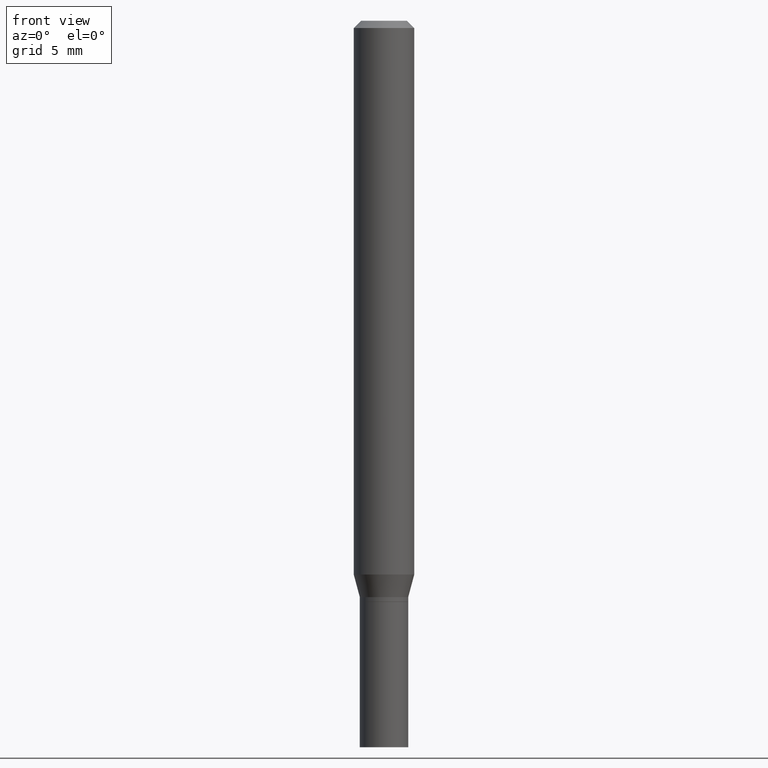
[diagram: clean part render]
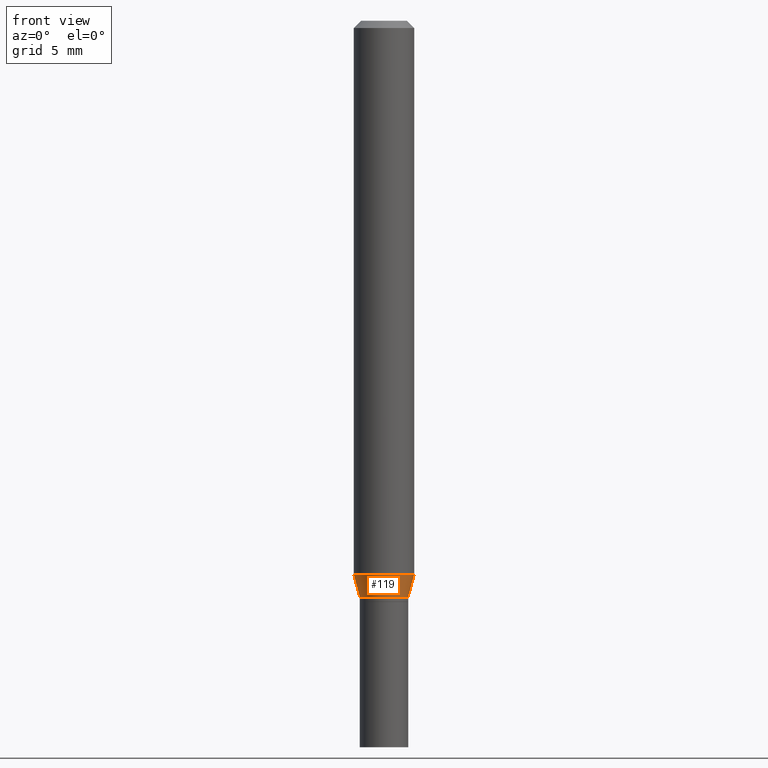
[diagram: same view with one face highlighted and labeled with its STEP entity id]
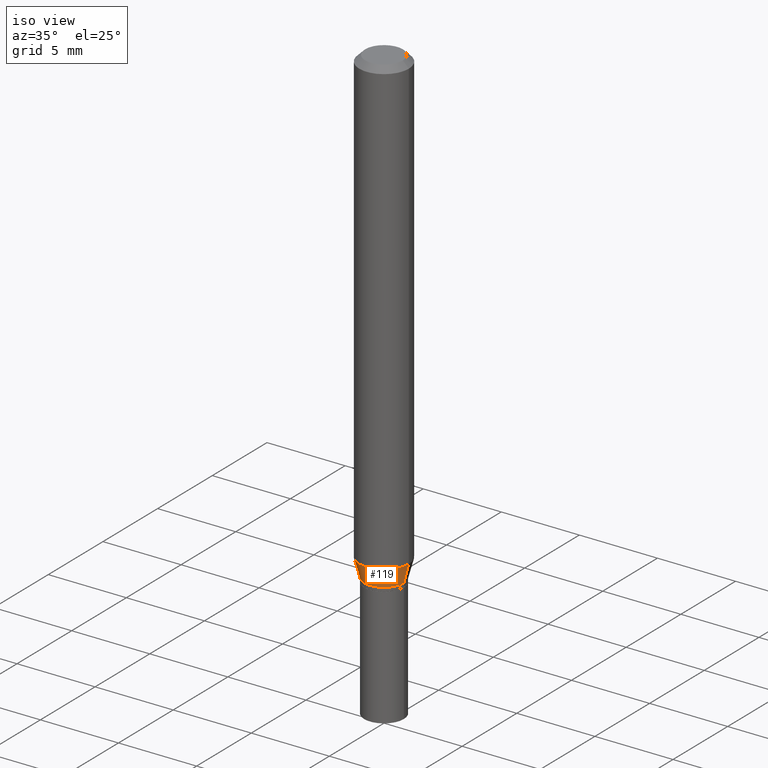
[diagram: same view with one face highlighted and labeled with its STEP entity id]
A machine part, front view. The second image highlights one B-rep face of the part: STEP entity #119.
A second angle (iso view) of the same face is appended — the face is thin or edge-on in the first view.
In plain terms, the highlighted conical surface has half-angle 15 deg.
Its self-contained STEP definition (entity closure, byte-faithful):
#9 = DIRECTION ( 'NONE',  ( -2.445468806185136597E-29, 3.491481338843145583E-15, 1.000000000000000000 ) ) ;
#10 = CIRCLE ( 'NONE', #130, 0.05000000000000006523 ) ;
#31 = DIRECTION ( 'NONE',  ( 1.000000000000000000, -6.982962677686265133E-15, 0.000000000000000000 ) ) ;
#32 = DIRECTION ( 'NONE',  ( 1.000000000000000000, -6.982962677686270655E-15, 0.000000000000000000 ) ) ;
#33 = EDGE_CURVE ( 'NONE', #134, #355, #357, .T. ) ;
#52 = AXIS2_PLACEMENT_3D ( 'NONE', #464, #344, #32 ) ;
#53 = VECTOR ( 'NONE', #143, 39.37007874015748143 ) ;
#74 = CARTESIAN_POINT ( 'NONE',  ( 2.910107879360313156E-29, -4.154862793223344154E-15, -1.190000000000000169 ) ) ;
#104 = DIRECTION ( 'NONE',  ( -2.445468806185136597E-29, 3.491481338843145583E-15, 1.000000000000000000 ) ) ;
#105 = ORIENTED_EDGE ( 'NONE', *, *, #337, .T. ) ;
#113 = DIRECTION ( 'NONE',  ( 0.2588190451025219607, 1.565188264969617432E-15, 0.9659258262890679791 ) ) ;
#118 = DIRECTION ( 'NONE',  ( 1.000000000000000000, -6.982962677686265133E-15, 0.000000000000000000 ) ) ;
#119 = ADVANCED_FACE ( 'NONE', ( #335 ), #166, .T. ) ;
#130 = AXIS2_PLACEMENT_3D ( 'NONE', #74, #104, #31 ) ;
#134 = VERTEX_POINT ( 'NONE', #235 ) ;
#143 = DIRECTION ( 'NONE',  ( -0.2588190451025219607, 5.211531920934553408E-15, 0.9659258262890679791 ) ) ;
#144 = CARTESIAN_POINT ( 'NONE',  ( 2.910107879360313156E-29, -4.154862793223344154E-15, -1.190000000000000169 ) ) ;
#155 = EDGE_CURVE ( 'NONE', #310, #291, #10, .T. ) ;
#166 = CONICAL_SURFACE ( 'NONE', #419, 0.05000000000000006523, 0.2617993877991506846 ) ;
#186 = LINE ( 'NONE', #463, #53 ) ;
#218 = LINE ( 'NONE', #269, #460 ) ;
#235 = CARTESIAN_POINT ( 'NONE',  ( -0.06250000000000000000, -3.547893761495267568E-15, -1.143349364905389631 ) ) ;
#242 = CARTESIAN_POINT ( 'NONE',  ( 0.05000000000000006523, -4.504010927107657490E-15, -1.190000000000000169 ) ) ;
#267 = EDGE_CURVE ( 'NONE', #310, #134, #186, .T. ) ;
#269 = CARTESIAN_POINT ( 'NONE',  ( 0.05000000000000006523, -4.504010927107657490E-15, -1.190000000000000169 ) ) ;
#273 = EDGE_LOOP ( 'NONE', ( #332, #308, #105, #462 ) ) ;
#290 = CARTESIAN_POINT ( 'NONE',  ( -0.05000000000000006523, -3.673742593419279671E-15, -1.190000000000000169 ) ) ;
#291 = VERTEX_POINT ( 'NONE', #242 ) ;
#308 = ORIENTED_EDGE ( 'NONE', *, *, #155, .T. ) ;
#310 = VERTEX_POINT ( 'NONE', #290 ) ;
#332 = ORIENTED_EDGE ( 'NONE', *, *, #267, .F. ) ;
#335 = FACE_OUTER_BOUND ( 'NONE', #273, .T. ) ;
#337 = EDGE_CURVE ( 'NONE', #291, #355, #218, .T. ) ;
#344 = DIRECTION ( 'NONE',  ( -2.445468806185136597E-29, 3.491481338843145583E-15, 1.000000000000000000 ) ) ;
#355 = VERTEX_POINT ( 'NONE', #371 ) ;
#357 = CIRCLE ( 'NONE', #52, 0.06250000000000000000 ) ;
#371 = CARTESIAN_POINT ( 'NONE',  ( 0.06250000000000000000, -4.428418138700722248E-15, -1.143349364905389631 ) ) ;
#419 = AXIS2_PLACEMENT_3D ( 'NONE', #144, #9, #118 ) ;
#460 = VECTOR ( 'NONE', #113, 39.37007874015748143 ) ;
#462 = ORIENTED_EDGE ( 'NONE', *, *, #33, .F. ) ;
#463 = CARTESIAN_POINT ( 'NONE',  ( -0.05000000000000006523, -3.799591425343292957E-15, -1.190000000000000169 ) ) ;
#464 = CARTESIAN_POINT ( 'NONE',  ( 2.796025206447717260E-29, -3.991982971345330579E-15, -1.143349364905389631 ) ) ;